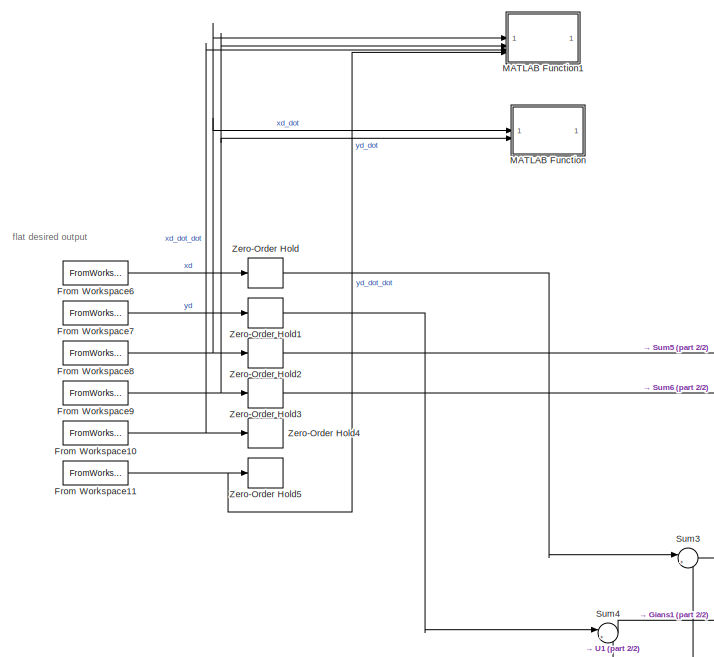
[diagram: root canvas - part 1/2, middle left region]
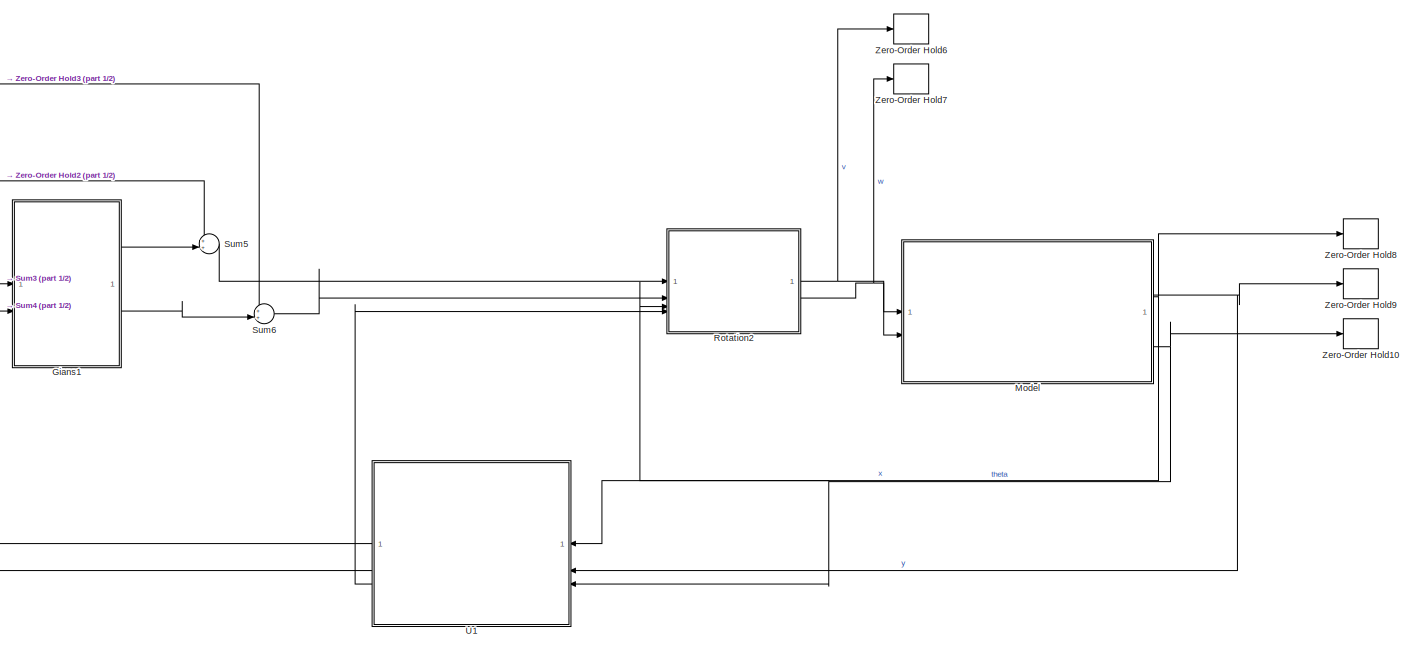
[diagram: root canvas - part 2/2, middle right region]
MODEL slx_b015e3131aec
KIND model
CONFIG AbsTol = auto
CONFIG EnableMultiTasking = off
CONFIG FixedStep = auto
CONFIG MaxStep = auto
CONFIG MinStep = auto
CONFIG RelTol = 1e-3
CONFIG SampleTimeConstraint = Unconstrained
CONFIG SolverName = VariableStepAuto
CONFIG StartTime = 0.0
CONFIG StopTime = 10.0
BLOCK [FromWorkspace] From Workspace10
  OutputAfterFinalValue = Holding final value
  SampleTime = Ts
  VariableName = trajectories("trajectory"+sim_trajectory_id).xd_dot_dot_ts
BLOCK [FromWorkspace] From Workspace11
  OutputAfterFinalValue = Holding final value
  SampleTime = Ts
  VariableName = trajectories("trajectory"+sim_trajectory_id).yd_dot_dot_ts
BLOCK [FromWorkspace] From Workspace6
  OutputAfterFinalValue = Holding final value
  SampleTime = Ts
  VariableName = trajectories("trajectory"+sim_trajectory_id).xd_ts
BLOCK [FromWorkspace] From Workspace7
  OutputAfterFinalValue = Holding final value
  SampleTime = Ts
  VariableName = trajectories("trajectory"+sim_trajectory_id).yd_ts
BLOCK [FromWorkspace] From Workspace8
  OutputAfterFinalValue = Holding final value
  SampleTime = Ts
  VariableName = trajectories("trajectory"+sim_trajectory_id).xd_dot_ts
BLOCK [FromWorkspace] From Workspace9
  OutputAfterFinalValue = Holding final value
  SampleTime = Ts
  VariableName = trajectories("trajectory"+sim_trajectory_id).yd_dot_ts
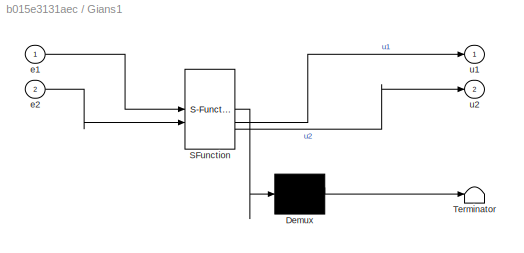
BLOCK [SubSystem] Gians1
  ErrorFcn = Stateflow.Translate.translate
  PermitHierarchicalResolution = ExplicitOnly
  SFBlockType = MATLAB Function
  TreatAsAtomicUnit = on
BLOCK [Demux] Gians1/ Demux 
  Outputs = 1
BLOCK [S-Function] Gians1/ SFunction 
  EnableBusSupport = off
  FunctionName = sf_sfun
  PortCounts = [2 3]
  SFcnIsStateOwnerBlock = off
  SFunctionDeploymentMode = off
  Tag = Stateflow S-Function 22
BLOCK [Terminator] Gians1/ Terminator 
BLOCK [Inport] Gians1/e1
BLOCK [Inport] Gians1/e2
  Port = 2
BLOCK [Outport] Gians1/u1
BLOCK [Outport] Gians1/u2
  Port = 2
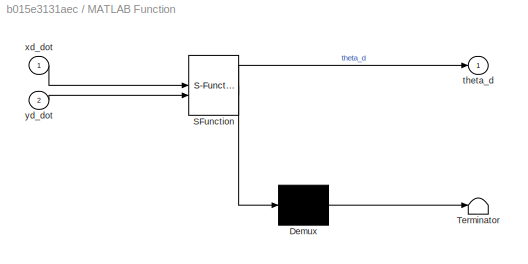
BLOCK [SubSystem] MATLAB Function
  ErrorFcn = Stateflow.Translate.translate
  PermitHierarchicalResolution = ExplicitOnly
  SFBlockType = MATLAB Function
  TreatAsAtomicUnit = on
BLOCK [Demux] MATLAB Function/ Demux 
  Outputs = 1
BLOCK [S-Function] MATLAB Function/ SFunction 
  EnableBusSupport = off
  FunctionName = sf_sfun
  PortCounts = [2 2]
  SFcnIsStateOwnerBlock = off
  SFunctionDeploymentMode = off
  Tag = Stateflow S-Function 2
BLOCK [Terminator] MATLAB Function/ Terminator 
BLOCK [Outport] MATLAB Function/theta_d
BLOCK [Inport] MATLAB Function/xd_dot
BLOCK [Inport] MATLAB Function/yd_dot
  Port = 2
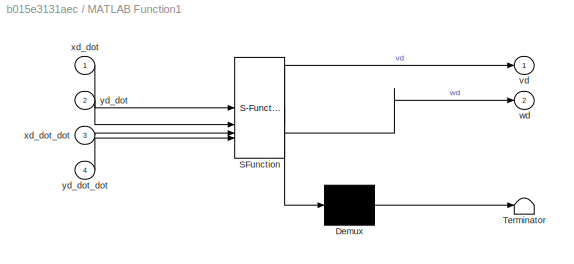
BLOCK [SubSystem] MATLAB Function1
  ErrorFcn = Stateflow.Translate.translate
  PermitHierarchicalResolution = ExplicitOnly
  SFBlockType = MATLAB Function
  TreatAsAtomicUnit = on
BLOCK [Demux] MATLAB Function1/ Demux 
  Outputs = 1
BLOCK [S-Function] MATLAB Function1/ SFunction 
  EnableBusSupport = off
  FunctionName = sf_sfun
  PortCounts = [4 3]
  SFcnIsStateOwnerBlock = off
  SFunctionDeploymentMode = off
  Tag = Stateflow S-Function 1
BLOCK [Terminator] MATLAB Function1/ Terminator 
BLOCK [Outport] MATLAB Function1/vd
BLOCK [Outport] MATLAB Function1/wd
  Port = 2
BLOCK [Inport] MATLAB Function1/xd_dot
BLOCK [Inport] MATLAB Function1/xd_dot_dot
  Port = 3
BLOCK [Inport] MATLAB Function1/yd_dot
  Port = 2
BLOCK [Inport] MATLAB Function1/yd_dot_dot
  Port = 4
BLOCK [ModelReference] Model
  ModelNameDialog = unicycle.slx
  ModelReferenceVersion = 1.13
  PortSchema = {"entries":[{"content":{"sides":[{"content":{"connectorIds":["In1","In2"]},"type":"ConnectorPlacement.EquallySpacedRectSide","uuid":"ad25d81c-9301-4260-b0e7-6964e2a4144d"},{"content":{"connectorIds":["Out1","Out2","Out3"],"side":"RIGHT"},"type":"ConnectorPlacement.EquallySpacedRectSide","uuid":"e119e278-1a19-4d21-ac57-f30b4b2846c4"},{"content":{"side":"TOP"},"type":"ConnectorPlacement.EquallySpace...<+392ch>
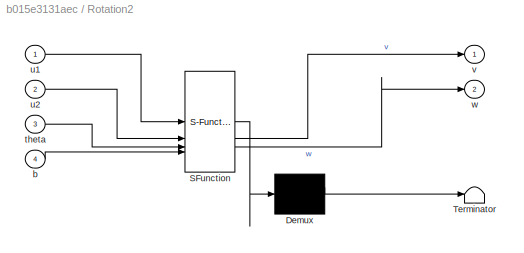
BLOCK [SubSystem] Rotation2
  ErrorFcn = Stateflow.Translate.translate
  PermitHierarchicalResolution = ExplicitOnly
  SFBlockType = MATLAB Function
  TreatAsAtomicUnit = on
BLOCK [Demux] Rotation2/ Demux 
  Outputs = 1
BLOCK [S-Function] Rotation2/ SFunction 
  EnableBusSupport = off
  FunctionName = sf_sfun
  PortCounts = [4 3]
  SFcnIsStateOwnerBlock = off
  SFunctionDeploymentMode = off
  Tag = Stateflow S-Function 15
BLOCK [Terminator] Rotation2/ Terminator 
BLOCK [Inport] Rotation2/b
  Port = 4
BLOCK [Inport] Rotation2/theta
  Port = 3
BLOCK [Inport] Rotation2/u1
BLOCK [Inport] Rotation2/u2
  Port = 2
BLOCK [Outport] Rotation2/v
BLOCK [Outport] Rotation2/w
  Port = 2
BLOCK [Sum] Sum3
  Inputs = |+-
BLOCK [Sum] Sum4
  Inputs = |+-
BLOCK [Sum] Sum5
  Inputs = ++|
BLOCK [Sum] Sum6
  Inputs = ++|
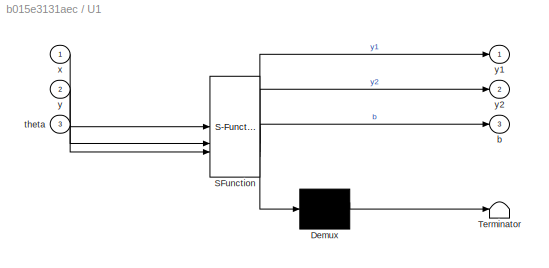
BLOCK [SubSystem] U1
  ErrorFcn = Stateflow.Translate.translate
  NameLocation = top
  PermitHierarchicalResolution = ExplicitOnly
  SFBlockType = MATLAB Function
  TreatAsAtomicUnit = on
BLOCK [Demux] U1/ Demux 
  Outputs = 1
BLOCK [S-Function] U1/ SFunction 
  EnableBusSupport = off
  FunctionName = sf_sfun
  PortCounts = [3 4]
  SFcnIsStateOwnerBlock = off
  SFunctionDeploymentMode = off
  Tag = Stateflow S-Function 23
BLOCK [Terminator] U1/ Terminator 
BLOCK [Outport] U1/b
  Port = 3
BLOCK [Inport] U1/theta
  Port = 3
BLOCK [Inport] U1/x
BLOCK [Inport] U1/y
  Port = 2
BLOCK [Outport] U1/y1
BLOCK [Outport] U1/y2
  Port = 2
BLOCK [ZeroOrderHold] Zero-Order Hold
  SampleTime = -1
BLOCK [ZeroOrderHold] Zero-Order Hold1
  SampleTime = -1
BLOCK [ZeroOrderHold] Zero-Order Hold10
  SampleTime = Ts
BLOCK [ZeroOrderHold] Zero-Order Hold2
  SampleTime = -1
BLOCK [ZeroOrderHold] Zero-Order Hold3
  SampleTime = -1
BLOCK [ZeroOrderHold] Zero-Order Hold4
  SampleTime = -1
BLOCK [ZeroOrderHold] Zero-Order Hold5
  SampleTime = -1
BLOCK [ZeroOrderHold] Zero-Order Hold6
  SampleTime = Ts
BLOCK [ZeroOrderHold] Zero-Order Hold7
  SampleTime = Ts
BLOCK [ZeroOrderHold] Zero-Order Hold8
  SampleTime = Ts
BLOCK [ZeroOrderHold] Zero-Order Hold9
  SampleTime = Ts
ANNOTATION (root): flat desired output
NET From Workspace10:1 -> MATLAB Function1:3, Zero-Order Hold4:1
NET From Workspace11:1 -> MATLAB Function1:4, Zero-Order Hold5:1
LINE From Workspace6:1 -> Zero-Order Hold:1
LINE From Workspace7:1 -> Zero-Order Hold1:1
NET From Workspace8:1 -> MATLAB Function1:1, MATLAB Function:1, Zero-Order Hold2:1
NET From Workspace9:1 -> MATLAB Function1:2, MATLAB Function:2, Zero-Order Hold3:1
LINE Gians1:1 -> Sum5:2
LINE Gians1:2 -> Sum6:2
NET Model:1 -> U1:1, Zero-Order Hold8:1
NET Model:2 -> U1:2, Zero-Order Hold9:1
NET Model:3 -> Rotation2:3, U1:3, Zero-Order Hold10:1
NET Rotation2:1 -> Model:1, Zero-Order Hold6:1
NET Rotation2:2 -> Model:2, Zero-Order Hold7:1
LINE Sum3:1 -> Gians1:1
LINE Sum4:1 -> Gians1:2
LINE Sum5:1 -> Rotation2:1
LINE Sum6:1 -> Rotation2:2
LINE U1:1 -> Sum3:2
LINE U1:2 -> Sum4:2
LINE U1:3 -> Rotation2:4
LINE Zero-Order Hold1:1 -> Sum4:1
LINE Zero-Order Hold2:1 -> Sum5:1
LINE Zero-Order Hold3:1 -> Sum6:1
LINE Zero-Order Hold:1 -> Sum3:1
note: NET lines group one-source signal fan-out (src -> all destinations, sorted); 1:1 wires keep LINE
CHART MATLAB Function1 states=1 transitions=1
  STATE_LABEL 'eML_blk_kernel()'
  STATE_LABEL 'SCRIPT:\nfunction [vd, wd]= fcn(xd_dot, yd_dot, xd_dot_dot, yd_dot_dot)\nvd = sqrt(xd_dot^2 + yd_dot^2);\nwd = (xd_dot*yd_dot_dot - xd_dot_dot*yd_dot) / max(xd_dot^2 + yd_dot^2, 1e-3);\n'
CHART MATLAB Function states=1 transitions=1
  STATE_LABEL 'eML_blk_kernel()'
  STATE_LABEL 'SCRIPT:\nfunction theta_d = fcn(xd_dot, yd_dot)\ntheta_d = atan2(yd_dot, xd_dot);\n'
CHART Rotation2 states=1 transitions=1
  STATE_LABEL 'eML_blk_kernel()'
  STATE_LABEL 'SCRIPT:\nfunction [v,w] = error_transform(u1, u2 , theta,b)\n\nv = u1 * cos(theta)       + u2 * sin(theta);\nw = u1 * (- sin(theta)/b) + u2 *cos(theta)/b;\nend'
CHART Gians1 states=1 transitions=1
  STATE_LABEL 'eML_blk_kernel()'
  STATE_LABEL 'SCRIPT:\nfunction [u1,u2 ] = gain_scheduler(e1,e2)\n\nk1 = 1.5;\nk2 = 1.5;\n\nu1 = k1 * e1;\nu2 = k2 * e2;\n\n\n\nend'
CHART U1 states=1 transitions=1
  STATE_LABEL 'eML_blk_kernel()'
  STATE_LABEL 'SCRIPT:\nfunction [y1, y2,b] = inversTransform(x,y,theta)\nb = 1;\ny1 = x + b * cos(theta);\ny2 = y + b * sin(theta);\n\nend'
CHART  states=0 transitions=0
CHART  states=0 transitions=0
CHART  states=0 transitions=0
CHART  states=0 transitions=0
CHART  states=0 transitions=0
